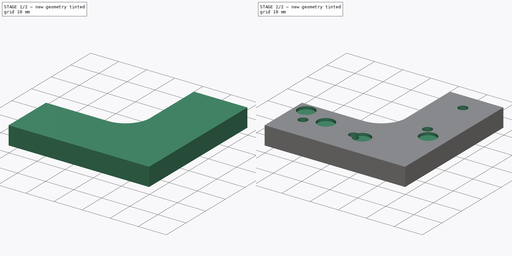
[diagram: build sequence overview — one tinted view per stage of 2, left to right]
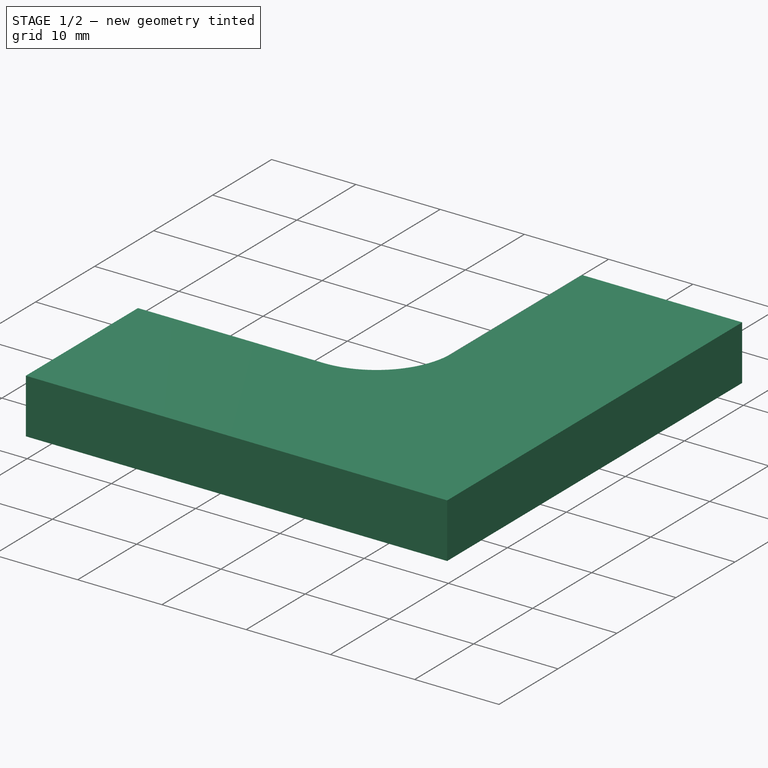
[diagram: stage 1 of 2 — iso view after this stage's code; geometry added in this stage tinted green]
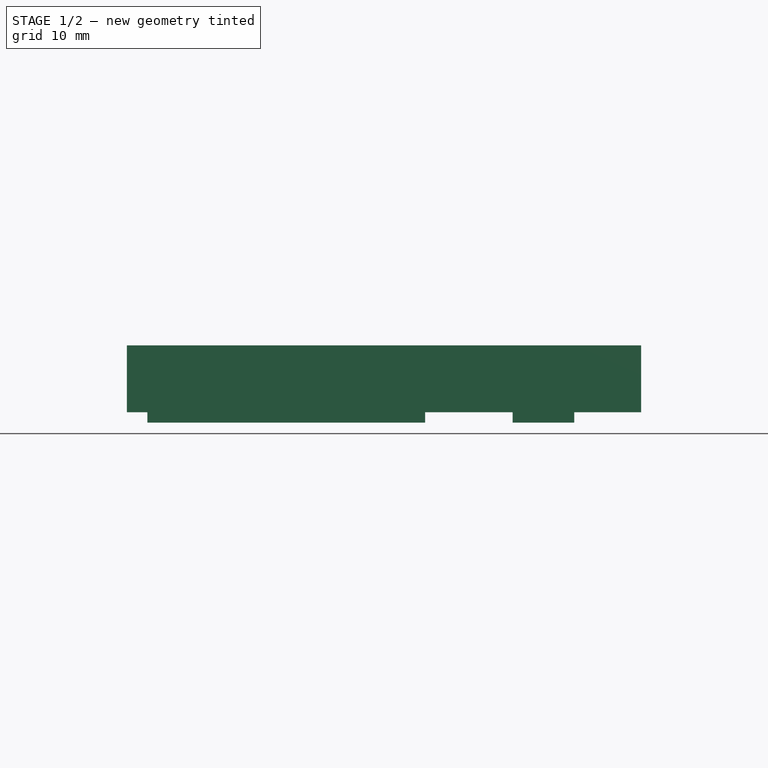
[diagram: stage 1 of 2 — front view after this stage's code; geometry added in this stage tinted green]
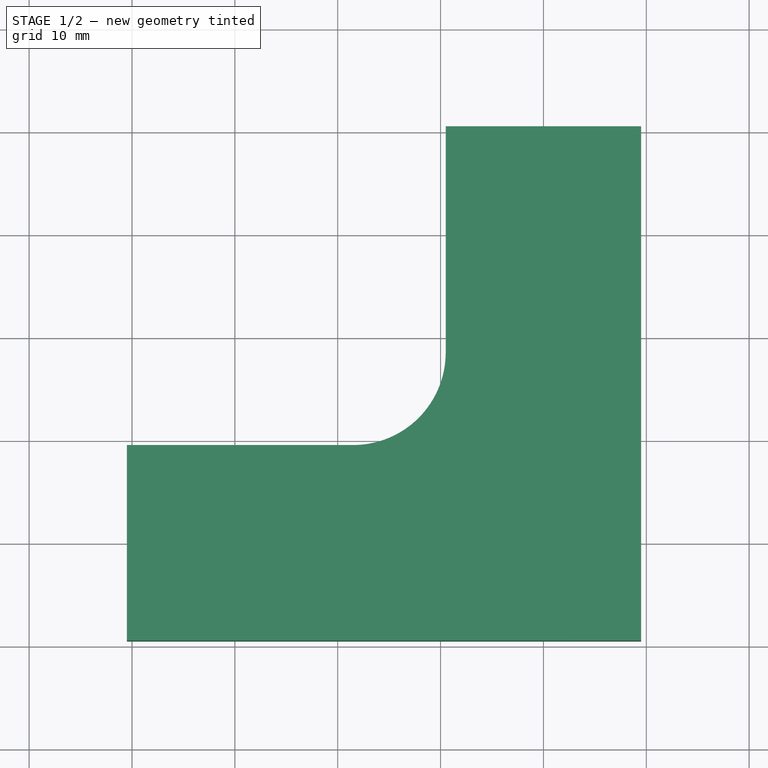
[diagram: stage 1 of 2 — top view after this stage's code; geometry added in this stage tinted green]
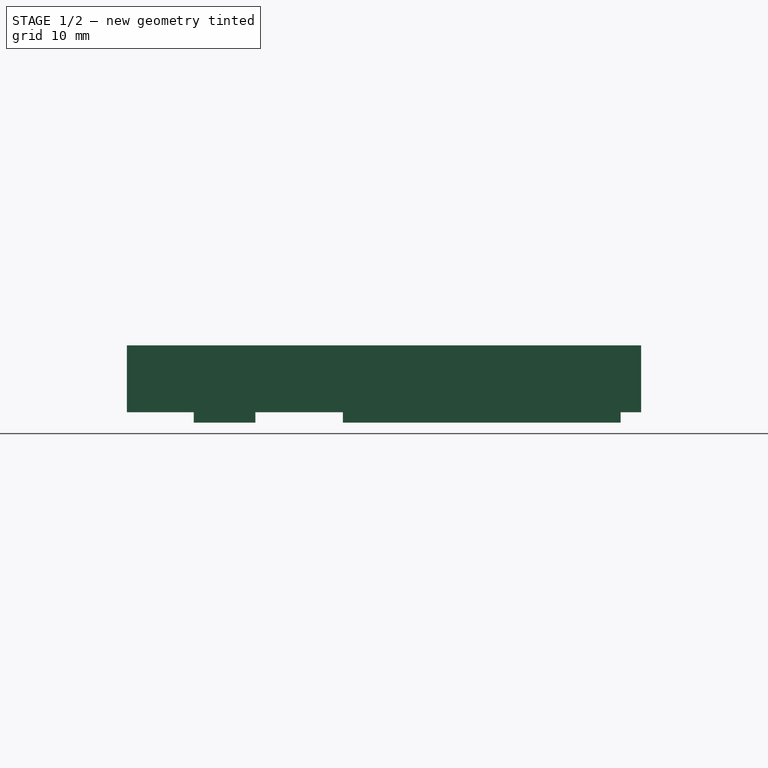
[diagram: stage 1 of 2 — right view after this stage's code; geometry added in this stage tinted green]
FCSTD DOCUMENT  (FreeCAD 0.16R5119 (Git))
Label: upper-bracket
License: All rights reserved
LicenseURL: https://ru.wikipedia.org/wiki/All_rights_reserved
objects: Sketcher::SketchObject×4, PartDesign::Pad×2, PartDesign::Pocket×2
note: 12 computed .brp shape members not serialized (recipe doc carries the construction recipe); baked Part::Feature solids carry a one-line shape summary decoded from their .brp

FEATURE [Sketcher::SketchObject] Sketch  label="body"
  sketch-geometry (7):
    g0: LineSegment StartX=-9.5 StartY=40.5 StartZ=0 EndX=9.5 EndY=40.5 EndZ=0
    g1: LineSegment StartX=9.5 StartY=40.5 StartZ=0 EndX=9.5 EndY=-9.5 EndZ=0
    g2: LineSegment StartX=9.5 StartY=-9.5 StartZ=0 EndX=-40.5 EndY=-9.5 EndZ=0
    g3: LineSegment StartX=-40.5 StartY=-9.5 StartZ=0 EndX=-40.5 EndY=9.5 EndZ=0
    g4: LineSegment StartX=-40.5 StartY=9.5 StartZ=0 EndX=-18.5 EndY=9.5 EndZ=0
    g5: LineSegment StartX=-9.5 StartY=18.5 StartZ=0 EndX=-9.5 EndY=40.5 EndZ=0
    g6: ArcOfCircle CenterX=-18.5 CenterY=18.5 CenterZ=0 NormalX=0 NormalY=0 NormalZ=1 Radius=9 StartAngle=4.71239 EndAngle=6.28319
  constraints (20):
    c: Horizontal(g0)
    c: Coincident(g0,g1)
    c: Vertical(g1)
    c: Coincident(g1,g2)
    c: Horizontal(g2)
    c: Coincident(g2,g3)
    c: Vertical(g3)
    c: Coincident(g3,g4)
    c: Horizontal(g4)
    c: Vertical(g5)
    c: Symmetric(g2,g3,g-1)
    c: Symmetric(g0,g0,g-2)
    c: Equal(g5,g4)
    c: Coincident(g5,g0)
    c: Equal(g1,g2)
    c: DistanceY(g3) = 19
    c: DistanceY(g1) = -50
    c: Tangent(g4,g6) = -1.5708
    c: Tangent(g5,g6) = -1.5708
    c: Radius(g6) = 9
FEATURE [PartDesign::Pad] Pad
  Length = 6.5
  Length2 = 100
  Sketch = -> Sketch
  Type = 0
FEATURE [Sketcher::SketchObject] Sketch001  label="pads"
  ExternalGeometry = -> [Pad]
  Placement = pos=(0,0,0) rot=(1,0,0;3.14159rad)
  Support = -> Pad [Face8]
  sketch-geometry (16):
    g0: LineSegment StartX=-38.5 StartY=3 StartZ=0 EndX=-11.5 EndY=3 EndZ=0
    g1: LineSegment StartX=-11.5 StartY=3 StartZ=0 EndX=-11.5 EndY=-3 EndZ=0
    g2: LineSegment StartX=-11.5 StartY=-3 StartZ=0 EndX=-38.5 EndY=-3 EndZ=0
    g3: LineSegment StartX=-38.5 StartY=-3 StartZ=0 EndX=-38.5 EndY=3 EndZ=0
    g4: LineSegment StartX=-3 StartY=-11.5 StartZ=0 EndX=3 EndY=-11.5 EndZ=0
    g5: LineSegment StartX=3 StartY=-11.5 StartZ=0 EndX=3 EndY=-38.5 EndZ=0
    g6: LineSegment StartX=3 StartY=-38.5 StartZ=0 EndX=-3 EndY=-38.5 EndZ=0
    g7: LineSegment StartX=-3 StartY=-38.5 StartZ=0 EndX=-3 EndY=-11.5 EndZ=0
    g8: LineSegment [constr] StartX=3 StartY=-11.5 StartZ=0 EndX=3 EndY=9.5 EndZ=0
    g9: LineSegment [constr] StartX=-11.5 StartY=3 StartZ=0 EndX=9.5 EndY=3 EndZ=0
    g10: LineSegment [constr] StartX=-38.5 StartY=3 StartZ=0 EndX=-40.5 EndY=3 EndZ=0
    g11: LineSegment [constr] StartX=3 StartY=-38.5 StartZ=0 EndX=3 EndY=-40.5 EndZ=0
    g12: LineSegment [constr] StartX=-33 StartY=3 StartZ=0 EndX=-33 EndY=0 EndZ=0
    g13: LineSegment [constr] StartX=-33 StartY=0 StartZ=0 EndX=-33 EndY=-3 EndZ=0
    g14: LineSegment [constr] StartX=-3 StartY=-18 StartZ=0 EndX=0 EndY=-18 EndZ=0
    g15: LineSegment [constr] StartX=0 StartY=-18 StartZ=0 EndX=3 EndY=-18 EndZ=0
  constraints (52):
    c: Coincident(g0,g1)
    c: Coincident(g1,g2)
    c: Coincident(g2,g3)
    c: Coincident(g3,g0)
    c: Horizontal(g0)
    c: Horizontal(g2)
    c: Vertical(g1)
    c: Vertical(g3)
    c: Coincident(g4,g5)
    c: Coincident(g5,g6)
    c: Coincident(g6,g7)
    c: Coincident(g7,g4)
    c: Horizontal(g4)
    c: Horizontal(g6)
    c: Vertical(g5)
    c: Vertical(g7)
    c: Equal(g0,g2)
    c: Equal(g2,g7)
    c: Equal(g7,g5)
    c: Equal(g1,g3)
    c: Equal(g3,g4)
    c: Equal(g4,g6)
    c: Coincident(g8,g4)
    c: PointOnObject(g8,g-8)
    c: Vertical(g8)
    c: Coincident(g9,g0)
    c: PointOnObject(g9,g-5)
    c: Horizontal(g9)
    c: Equal(g8,g9)
    c: DistanceX(g9) = 21
    c: Coincident(g10,g0)
    c: PointOnObject(g10,g-3)
    c: Horizontal(g10)
    c: Coincident(g11,g5)
    c: PointOnObject(g11,g-4)
    c: Equal(g11,g10)
    c: DistanceX(g10) = -2
    c: Vertical(g12)
    c: Vertical(g13)
    c: PointOnObject(g13,g2)
    c: Coincident(g13,g12)
    c: PointOnObject(g12,g-1)
    c: PointOnObject(g12,g0)
    c: Equal(g12,g13)
    c: PointOnObject(g14,g7)
    c: Horizontal(g14)
    c: Coincident(g14,g15)
    c: PointOnObject(g15,g5)
    c: Horizontal(g15)
    c: Equal(g14,g15)
    c: DistanceX(g6,g5) = 6
    c: PointOnObject(g14,g-2)
FEATURE [PartDesign::Pad] Pad001
  Length = 1
  Length2 = 100
  Sketch = -> Sketch001
  Type = 0
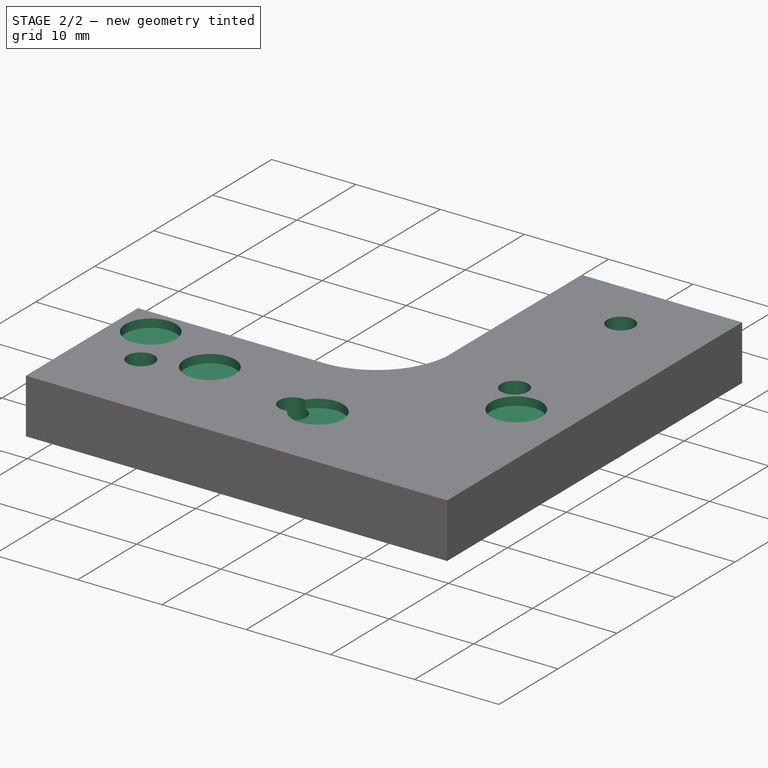
[diagram: stage 2 of 2 — iso view after this stage's code; geometry added in this stage tinted green]
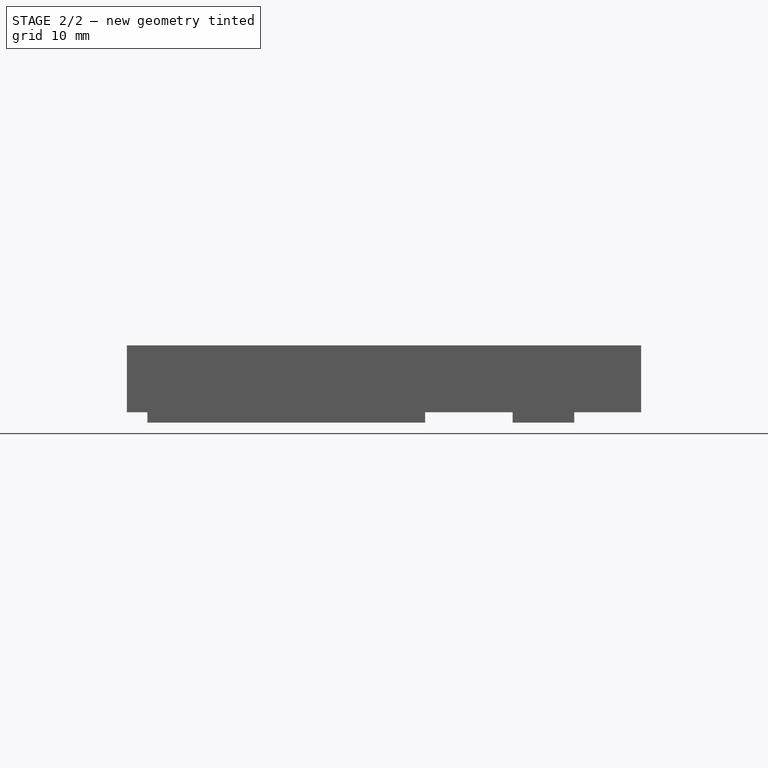
[diagram: stage 2 of 2 — front view after this stage's code; geometry added in this stage tinted green]
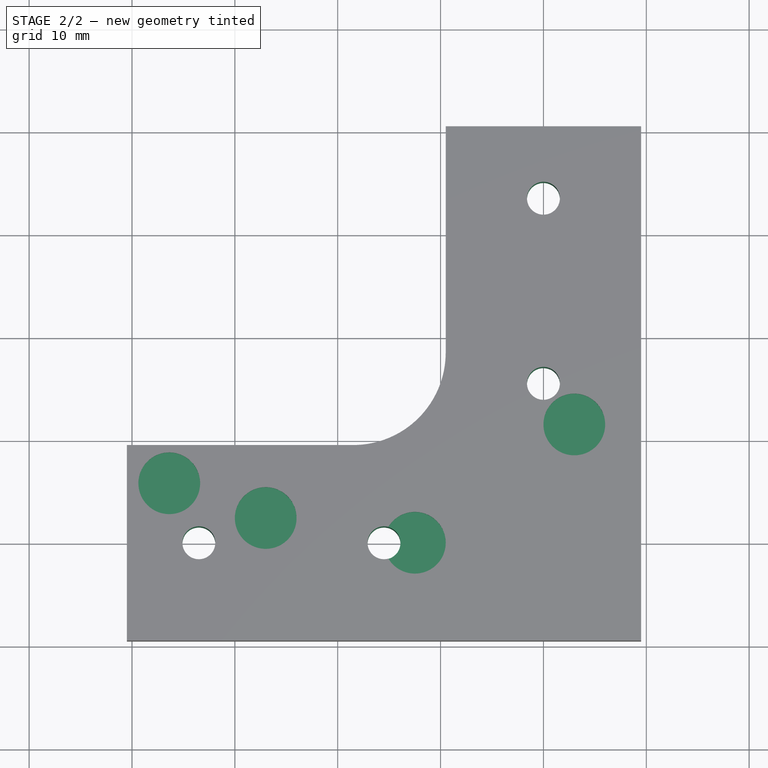
[diagram: stage 2 of 2 — top view after this stage's code; geometry added in this stage tinted green]
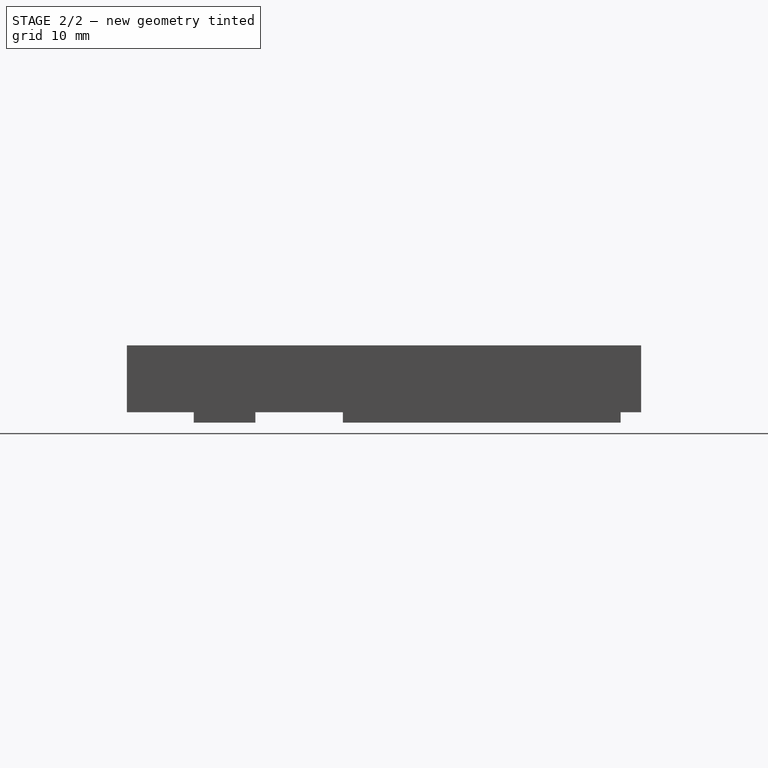
[diagram: stage 2 of 2 — right view after this stage's code; geometry added in this stage tinted green]
FEATURE [Sketcher::SketchObject] Sketch002  label="m3 holes"
  ExternalGeometry = -> [Pad001]
  Placement = pos=(0,0,6.5) rot=(0,0,1;0rad)
  Support = -> Pad001 [Face5]
  sketch-geometry (8):
    g0: Circle CenterX=-33.5 CenterY=0 CenterZ=0 NormalX=0 NormalY=0 NormalZ=1 Radius=1.6
    g1: Circle CenterX=-15.5 CenterY=0 CenterZ=0 NormalX=0 NormalY=0 NormalZ=1 Radius=1.6
    g2: Circle CenterX=0 CenterY=15.5 CenterZ=0 NormalX=0 NormalY=0 NormalZ=1 Radius=1.6
    g3: Circle CenterX=0 CenterY=33.5 CenterZ=0 NormalX=0 NormalY=0 NormalZ=1 Radius=1.6
    g4: LineSegment [constr] StartX=-33.5 StartY=0 StartZ=0 EndX=-40.5 EndY=0 EndZ=0
    g5: LineSegment [constr] StartX=0 StartY=33.5 StartZ=0 EndX=0 EndY=40.5 EndZ=0
    g6: LineSegment [constr] StartX=-15.5 StartY=0 StartZ=0 EndX=9.5 EndY=0 EndZ=0
    g7: LineSegment [constr] StartX=0 StartY=15.5 StartZ=0 EndX=0 EndY=-9.5 EndZ=0
  constraints (24):
    c: PointOnObject(g0,g-1)
    c: PointOnObject(g1,g-1)
    c: PointOnObject(g2,g-2)
    c: Equal(g0,g1)
    c: Equal(g1,g2)
    c: Equal(g2,g3)
    c: Radius(g0) = 1.6
    c: Coincident(g4,g0)
    c: PointOnObject(g4,g-3)
    c: Horizontal(g4)
    c: Vertical(g5)
    c: Coincident(g3,g5)
    c: Equal(g5,g4)
    c: DistanceY(g5) = 7
    c: Coincident(g6,g1)
    c: Horizontal(g6)
    c: PointOnObject(g7,g-5)
    c: Vertical(g7)
    c: Equal(g7,g6)
    c: PointOnObject(g6,g-6)
    c: Coincident(g2,g7)
    c: DistanceX(g6) = 25
    c: PointOnObject(g5,g-4)
    c: PointOnObject(g3,g-2)
FEATURE [PartDesign::Pocket] Pocket
  Length = 5
  Sketch = -> Sketch002
  Type = 1
FEATURE [Sketcher::SketchObject] Sketch003  label="m3 heads"
  ExternalGeometry = -> [Pocket]
  Placement = pos=(0,0,6.5) rot=(0,0,1;0rad)
  Support = -> Pocket [Face5]
  sketch-geometry (4):
    g0: Circle CenterX=3 CenterY=11.5 CenterZ=0 NormalX=0 NormalY=0 NormalZ=1 Radius=3
    g1: Circle CenterX=-12.5 CenterY=0 CenterZ=0 NormalX=0 NormalY=0 NormalZ=1 Radius=3
    g2: Circle CenterX=-36.3766 CenterY=5.78236 CenterZ=0 NormalX=0 NormalY=0 NormalZ=1 Radius=3
    g3: Circle CenterX=-27 CenterY=2.40611 CenterZ=0 NormalX=0 NormalY=0 NormalZ=1 Radius=3
  constraints (4):
    c: Equal(g0,g1)
    c: Equal(g1,g2)
    c: Equal(g2,g3)
    c: Radius(g0) = 3
FEATURE [PartDesign::Pocket] Pocket001
  Length = 1
  Sketch = -> Sketch003
  Type = 0
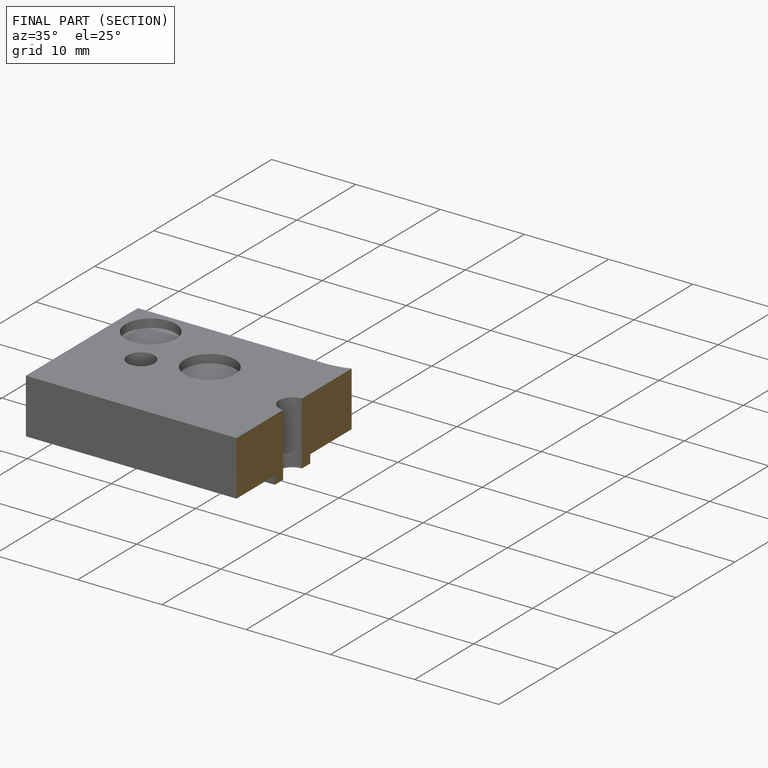
[diagram: finished part — half-section view (interior)]
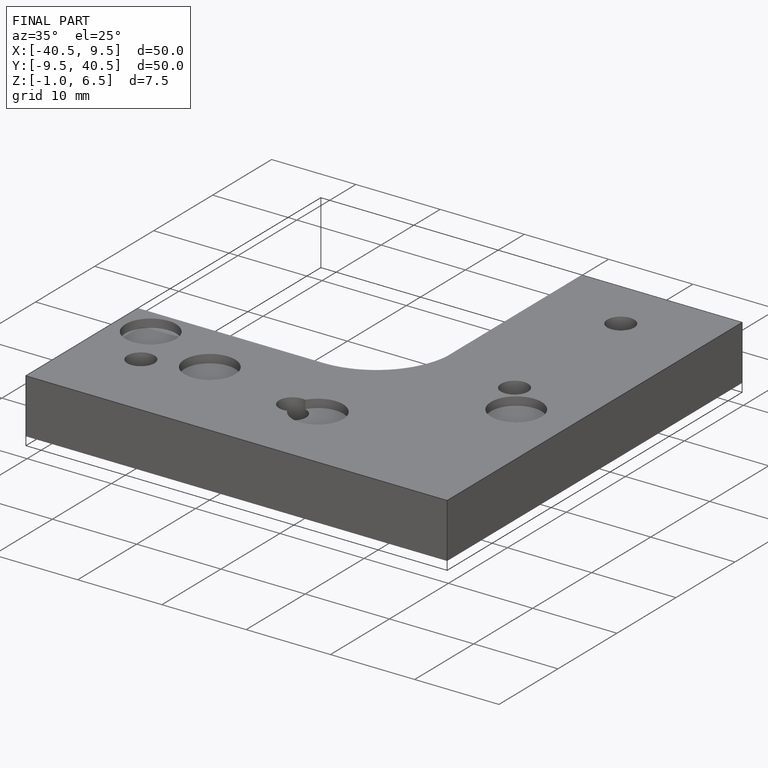
[diagram: finished part — iso view with bounding-box wireframe]
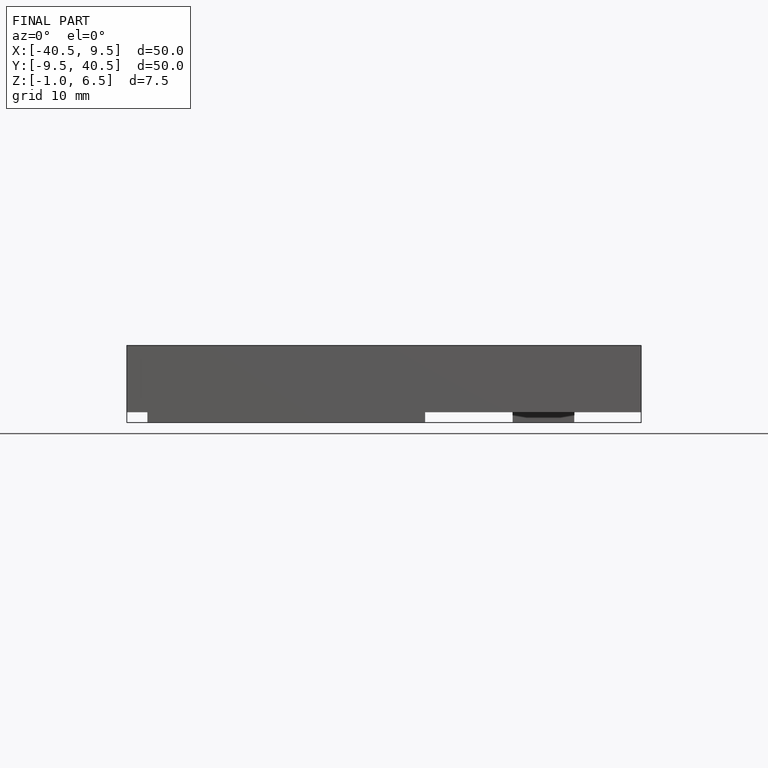
[diagram: finished part — front view with bounding-box wireframe]
